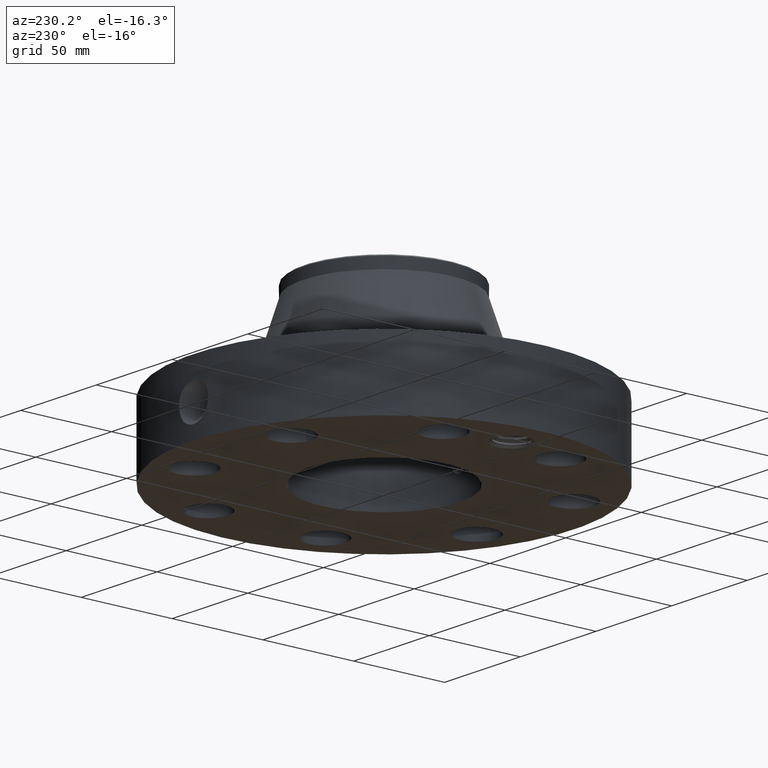
[diagram: clean part render]
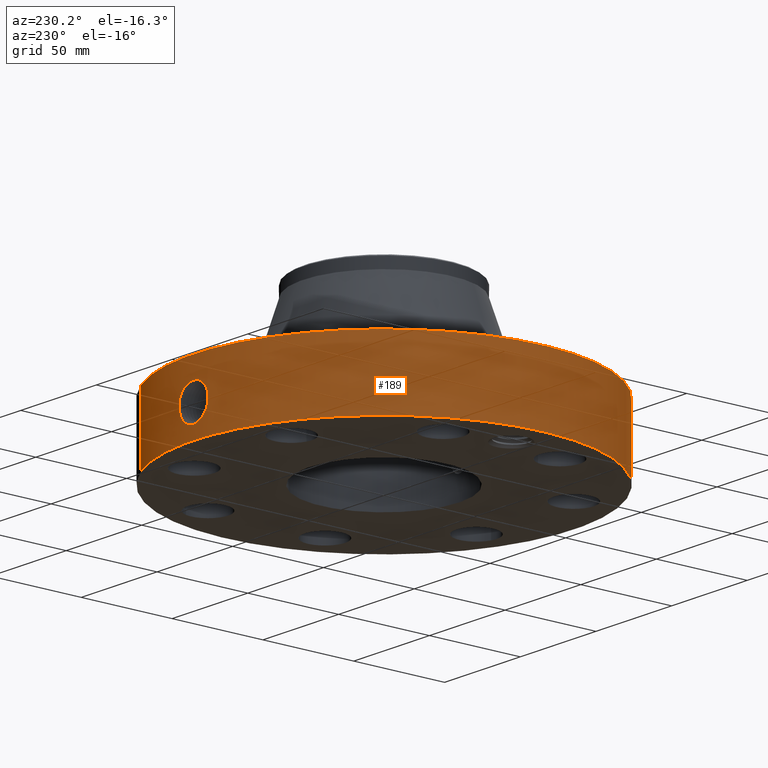
[diagram: same view with one face highlighted and labeled with its STEP entity id]
A machine part, auxiliary view. The second image highlights one B-rep face of the part: STEP entity #189.
In plain terms, the highlighted cylindrical surface (partial cylindrical patch) has radius 104.775 mm, axis along (0, 0, -1).
Its self-contained STEP definition (entity closure, byte-faithful):
#38=AXIS2_PLACEMENT_3D('Cylinder Axis2P3D',#35,#36,#37) ;
#42=AXIS2_PLACEMENT_3D('Circle Axis2P3D',#40,#41,$) ;
#58=AXIS2_PLACEMENT_3D('Circle Axis2P3D',#56,#57,$) ;
#35=CARTESIAN_POINT('Axis2P3D Location',(0.,0.,2.00000000001)) ;
#40=CARTESIAN_POINT('Axis2P3D Location',(0.,0.,0.250000000001)) ;
#44=CARTESIAN_POINT('Vertex',(-1.97763034675,-3.62002806781,0.250000000001)) ;
#46=CARTESIAN_POINT('Vertex',(1.97763034675,3.62002806781,0.250000000001)) ;
#49=CARTESIAN_POINT('Line Origine',(-1.97763034675,-3.62002806781,1.)) ;
#53=CARTESIAN_POINT('Vertex',(-1.97763034675,-3.62002806781,1.75000000001)) ;
#56=CARTESIAN_POINT('Axis2P3D Location',(0.,0.,1.75000000001)) ;
#60=CARTESIAN_POINT('Vertex',(1.97763034675,3.62002806781,1.75000000001)) ;
#63=CARTESIAN_POINT('Line Origine',(1.97763034675,3.62002806781,1.)) ;
#75=CARTESIAN_POINT('Control Point',(-0.0708258696702,4.12439191837,1.28694445408)) ;
#76=CARTESIAN_POINT('Control Point',(-0.0477756042722,4.12478774765,1.29166264763)) ;
#77=CARTESIAN_POINT('Control Point',(-0.0242493397502,4.12499584526,1.29407066085)) ;
#78=CARTESIAN_POINT('Control Point',(-0.000717367785733,4.12499993764,1.29411849621)) ;
#79=CARTESIAN_POINT('Vertex',(-0.0707931255285,4.12439274845,1.28695147494)) ;
#81=CARTESIAN_POINT('Vertex',(-0.000717115675858,4.12499993768,1.29411850626)) ;
#85=CARTESIAN_POINT('Control Point',(-0.0707929875436,4.12439248291,1.28695080973)) ;
#86=CARTESIAN_POINT('Control Point',(-0.105534403897,4.12379616511,1.28076532583)) ;
#87=CARTESIAN_POINT('Control Point',(-0.139240729959,4.12276500955,1.26858978299)) ;
#88=CARTESIAN_POINT('Control Point',(-0.170106274733,4.12149109612,1.25141106894)) ;
#89=CARTESIAN_POINT('Vertex',(-0.170106274733,4.12149109612,1.25141106894)) ;
#93=CARTESIAN_POINT('Control Point',(-0.170106274733,4.12149109612,1.25141106894)) ;
#94=CARTESIAN_POINT('Control Point',(-0.189944744256,4.1206723031,1.24036965022)) ;
#95=CARTESIAN_POINT('Control Point',(-0.208623588127,4.11975702947,1.22728178951)) ;
#96=CARTESIAN_POINT('Control Point',(-0.225825151081,4.11881390709,1.21251850282)) ;
#97=CARTESIAN_POINT('Vertex',(-0.225825362099,4.11881409519,1.21251874593)) ;
#101=CARTESIAN_POINT('Control Point',(-0.351866700326,4.10996530707,0.975464361167)) ;
#102=CARTESIAN_POINT('Control Point',(-0.3449788673,4.11055499552,1.04398627868)) ;
#103=CARTESIAN_POINT('Control Point',(-0.320314482859,4.11268399222,1.1107740783)) ;
#104=CARTESIAN_POINT('Control Point',(-0.278761447423,4.1159117292,1.16853984638)) ;
#105=CARTESIAN_POINT('Control Point',(-0.225809776376,4.11881475003,1.21253161272)) ;
#106=CARTESIAN_POINT('Vertex',(-0.351866537775,4.10996536585,0.975466055539)) ;
#110=CARTESIAN_POINT('Control Point',(-0.0285867200519,4.12490094421,0.531014415425)) ;
#111=CARTESIAN_POINT('Control Point',(-0.0731508323972,4.12459210242,0.53676262059)) ;
#112=CARTESIAN_POINT('Control Point',(-0.116605911807,4.12368909709,0.54961040193)) ;
#113=CARTESIAN_POINT('Control Point',(-0.157313656183,4.12226228881,0.569187265493)) ;
#114=CARTESIAN_POINT('Control Point',(-0.218412033157,4.11943105988,0.610865799686)) ;
#115=CARTESIAN_POINT('Control Point',(-0.267085984188,4.11640755897,0.664664117666)) ;
#116=CARTESIAN_POINT('Control Point',(-0.28431642276,4.11523449191,0.687667885458)) ;
#117=CARTESIAN_POINT('Control Point',(-0.32571007167,4.11223072828,0.754664964772)) ;
#118=CARTESIAN_POINT('Control Point',(-0.349728178371,4.11016858959,0.82919413644)) ;
#119=CARTESIAN_POINT('Control Point',(-0.357709929823,4.10945203007,0.878220924907)) ;
#120=CARTESIAN_POINT('Control Point',(-0.358385651064,4.10940720015,0.927417505239)) ;
#121=CARTESIAN_POINT('Control Point',(-0.351866458174,4.1099653278,0.975466036918)) ;
#122=CARTESIAN_POINT('Vertex',(-0.0285867200519,4.12490094421,0.531014415425)) ;
#126=CARTESIAN_POINT('Control Point',(-0.0285867200519,4.12490094421,0.531014415425)) ;
#127=CARTESIAN_POINT('Control Point',(-0.0190504033792,4.12496703356,0.530850653595)) ;
#128=CARTESIAN_POINT('Control Point',(-0.00951371795879,4.12500000631,0.530970811253)) ;
#129=CARTESIAN_POINT('Control Point',(2.72878353804E-006,4.12500000002,0.531374667805)) ;
#130=CARTESIAN_POINT('Vertex',(2.72878353841E-006,4.12500000002,0.531374667805)) ;
#134=CARTESIAN_POINT('Control Point',(0.195057006855,4.12038563295,0.582957545943)) ;
#135=CARTESIAN_POINT('Control Point',(0.134929810896,4.12323202451,0.551663787968)) ;
#136=CARTESIAN_POINT('Control Point',(0.0678695334282,4.12499995512,0.534254782757)) ;
#137=CARTESIAN_POINT('Control Point',(2.7287835307E-006,4.12500000002,0.531374667805)) ;
#138=CARTESIAN_POINT('Vertex',(0.195057006855,4.12038563295,0.582957545943)) ;
#142=CARTESIAN_POINT('Control Point',(0.277741653318,4.11563902379,0.638820641839)) ;
#143=CARTESIAN_POINT('Control Point',(0.252440207961,4.11734647802,0.617037280358)) ;
#144=CARTESIAN_POINT('Control Point',(0.224590631534,4.11898752584,0.598328594931)) ;
#145=CARTESIAN_POINT('Control Point',(0.195057006855,4.12038563295,0.582957545943)) ;
#146=CARTESIAN_POINT('Vertex',(0.277741653318,4.11563902379,0.638820641839)) ;
#150=CARTESIAN_POINT('Control Point',(0.277741653318,4.11563902379,0.638820641839)) ;
#151=CARTESIAN_POINT('Control Point',(0.346084614526,4.11102693635,0.706500366904)) ;
#152=CARTESIAN_POINT('Control Point',(0.392503228747,4.1063284801,0.795167285731)) ;
#153=CARTESIAN_POINT('Control Point',(0.412343746852,4.10434301328,0.89184725189)) ;
#154=CARTESIAN_POINT('Control Point',(0.406546637881,4.1049171528,0.98790255717)) ;
#155=CARTESIAN_POINT('Vertex',(0.406546637881,4.1049171528,0.98790255717)) ;
#159=CARTESIAN_POINT('Control Point',(0.406546637881,4.1049171528,0.98790255717)) ;
#160=CARTESIAN_POINT('Control Point',(0.39669630803,4.10589271901,1.03992594033)) ;
#161=CARTESIAN_POINT('Control Point',(0.377107791089,4.10780290855,1.08979808973)) ;
#162=CARTESIAN_POINT('Control Point',(0.348680840751,4.11043683845,1.13488020746)) ;
#163=CARTESIAN_POINT('Control Point',(0.272595100949,4.11655133167,1.21936561237)) ;
#164=CARTESIAN_POINT('Control Point',(0.173676685772,4.1218983007,1.27163748858)) ;
#165=CARTESIAN_POINT('Control Point',(0.116496598114,4.12398624661,1.28950778802)) ;
#166=CARTESIAN_POINT('Control Point',(0.0578342871635,4.12500036264,1.29698939342)) ;
#167=CARTESIAN_POINT('Control Point',(-2.58579355138E-005,4.12499999994,1.29415298439)) ;
#168=CARTESIAN_POINT('Vertex',(-2.585793551E-005,4.12499999994,1.29415298439)) ;
#172=CARTESIAN_POINT('Control Point',(-0.00071711566355,4.12499993768,1.29411850625)) ;
#173=CARTESIAN_POINT('Control Point',(-0.000371509656304,4.12499999777,1.29413603992)) ;
#174=CARTESIAN_POINT('Control Point',(-2.58579439154E-005,4.12499999994,1.29415298439)) ;
#36=DIRECTION('Axis2P3D Direction',(0.,0.,-0.0393700787402)) ;
#37=DIRECTION('Axis2P3D XDirection',(0.0188750212049,0.0345504945626,0.)) ;
#41=DIRECTION('Axis2P3D Direction',(0.,0.,-0.0393700787402)) ;
#50=DIRECTION('Vector Direction',(0.,0.,-0.0393700787402)) ;
#57=DIRECTION('Axis2P3D Direction',(0.,0.,-0.0393700787402)) ;
#64=DIRECTION('Vector Direction',(0.,0.,-0.0393700787402)) ;
#51=VECTOR('Line Direction',#50,0.0393700787402) ;
#65=VECTOR('Line Direction',#64,0.0393700787402) ;
#69=ORIENTED_EDGE('',*,*,#48,.F.) ;
#70=ORIENTED_EDGE('',*,*,#55,.T.) ;
#71=ORIENTED_EDGE('',*,*,#62,.T.) ;
#72=ORIENTED_EDGE('',*,*,#67,.F.) ;
#177=ORIENTED_EDGE('',*,*,#83,.F.) ;
#178=ORIENTED_EDGE('',*,*,#91,.T.) ;
#179=ORIENTED_EDGE('',*,*,#99,.T.) ;
#180=ORIENTED_EDGE('',*,*,#108,.F.) ;
#181=ORIENTED_EDGE('',*,*,#124,.F.) ;
#182=ORIENTED_EDGE('',*,*,#132,.T.) ;
#183=ORIENTED_EDGE('',*,*,#140,.F.) ;
#184=ORIENTED_EDGE('',*,*,#148,.F.) ;
#185=ORIENTED_EDGE('',*,*,#157,.T.) ;
#186=ORIENTED_EDGE('',*,*,#170,.T.) ;
#187=ORIENTED_EDGE('',*,*,#175,.F.) ;
#188=FACE_BOUND('',#176,.T.) ;
#189=ADVANCED_FACE('PartBody',(#73,#188),#39,.T.) ;
#74=B_SPLINE_CURVE_WITH_KNOTS('',3,(#75,#76,#77,#78),.UNSPECIFIED.,.F.,.U.,(4,4),(3.91174753645,6.52241187087),.UNSPECIFIED.) ;
#84=B_SPLINE_CURVE_WITH_KNOTS('',3,(#85,#86,#87,#88),.UNSPECIFIED.,.F.,.U.,(4,4),(0.,3.96493926535),.UNSPECIFIED.) ;
#92=B_SPLINE_CURVE_WITH_KNOTS('',3,(#93,#94,#95,#96),.UNSPECIFIED.,.F.,.U.,(4,4),(0.,2.54841856441),.UNSPECIFIED.) ;
#100=B_SPLINE_CURVE_WITH_KNOTS('',4,(#101,#102,#103,#104,#105),.UNSPECIFIED.,.F.,.U.,(5,5),(14.8279677024,25.0223849866),.UNSPECIFIED.) ;
#109=B_SPLINE_CURVE_WITH_KNOTS('',5,(#110,#111,#112,#113,#114,#115,#116,#117,#118,#119,#120,#121),.UNSPECIFIED.,.F.,.U.,(6,3,3,6),(0.,7.80985906697,12.9724794115,22.0575185824),.UNSPECIFIED.) ;
#125=B_SPLINE_CURVE_WITH_KNOTS('',3,(#126,#127,#128,#129),.UNSPECIFIED.,.F.,.U.,(4,4),(0.,0.994579949519),.UNSPECIFIED.) ;
#133=B_SPLINE_CURVE_WITH_KNOTS('',3,(#134,#135,#136,#137),.UNSPECIFIED.,.F.,.U.,(4,4),(0.,7.09287457911),.UNSPECIFIED.) ;
#141=B_SPLINE_CURVE_WITH_KNOTS('',3,(#142,#143,#144,#145),.UNSPECIFIED.,.F.,.U.,(4,4),(0.,3.48391923062),.UNSPECIFIED.) ;
#149=B_SPLINE_CURVE_WITH_KNOTS('',4,(#150,#151,#152,#153,#154),.UNSPECIFIED.,.F.,.U.,(5,5),(0.,13.3803771451),.UNSPECIFIED.) ;
#158=B_SPLINE_CURVE_WITH_KNOTS('',5,(#159,#160,#161,#162,#163,#164,#165,#166,#167),.UNSPECIFIED.,.F.,.U.,(6,3,6),(0.,9.20582229292,20.0210803139),.UNSPECIFIED.) ;
#171=B_SPLINE_CURVE_WITH_KNOTS('',2,(#172,#173,#174),.UNSPECIFIED.,.F.,.U.,(3,3),(1.12444292039,1.15028670438),.UNSPECIFIED.) ;
#43=CIRCLE('generated circle',#42,4.12500000002) ;
#59=CIRCLE('generated circle',#58,4.12500000002) ;
#39=CYLINDRICAL_SURFACE('generated cylinder',#38,4.12500000002) ;
#48=EDGE_CURVE('',#45,#47,#43,.T.) ;
#55=EDGE_CURVE('',#45,#54,#52,.F.) ;
#62=EDGE_CURVE('',#54,#61,#59,.T.) ;
#67=EDGE_CURVE('',#47,#61,#66,.F.) ;
#83=EDGE_CURVE('',#80,#82,#74,.T.) ;
#91=EDGE_CURVE('',#80,#90,#84,.T.) ;
#99=EDGE_CURVE('',#90,#98,#92,.T.) ;
#108=EDGE_CURVE('',#107,#98,#100,.T.) ;
#124=EDGE_CURVE('',#123,#107,#109,.T.) ;
#132=EDGE_CURVE('',#123,#131,#125,.T.) ;
#140=EDGE_CURVE('',#139,#131,#133,.T.) ;
#148=EDGE_CURVE('',#147,#139,#141,.T.) ;
#157=EDGE_CURVE('',#147,#156,#149,.T.) ;
#170=EDGE_CURVE('',#156,#169,#158,.T.) ;
#175=EDGE_CURVE('',#82,#169,#171,.T.) ;
#68=EDGE_LOOP('',(#69,#70,#71,#72)) ;
#176=EDGE_LOOP('',(#177,#178,#179,#180,#181,#182,#183,#184,#185,#186,#187)) ;
#73=FACE_OUTER_BOUND('',#68,.T.) ;
#52=LINE('Line',#49,#51) ;
#66=LINE('Line',#63,#65) ;
#45=VERTEX_POINT('',#44) ;
#47=VERTEX_POINT('',#46) ;
#54=VERTEX_POINT('',#53) ;
#61=VERTEX_POINT('',#60) ;
#80=VERTEX_POINT('',#79) ;
#82=VERTEX_POINT('',#81) ;
#90=VERTEX_POINT('',#89) ;
#98=VERTEX_POINT('',#97) ;
#107=VERTEX_POINT('',#106) ;
#123=VERTEX_POINT('',#122) ;
#131=VERTEX_POINT('',#130) ;
#139=VERTEX_POINT('',#138) ;
#147=VERTEX_POINT('',#146) ;
#156=VERTEX_POINT('',#155) ;
#169=VERTEX_POINT('',#168) ;